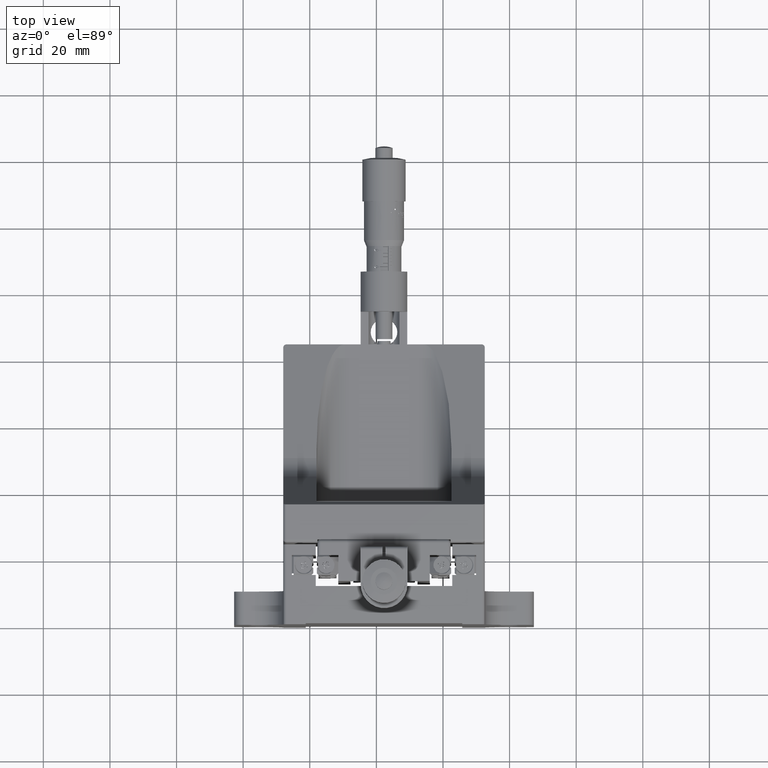
[diagram: clean part render]
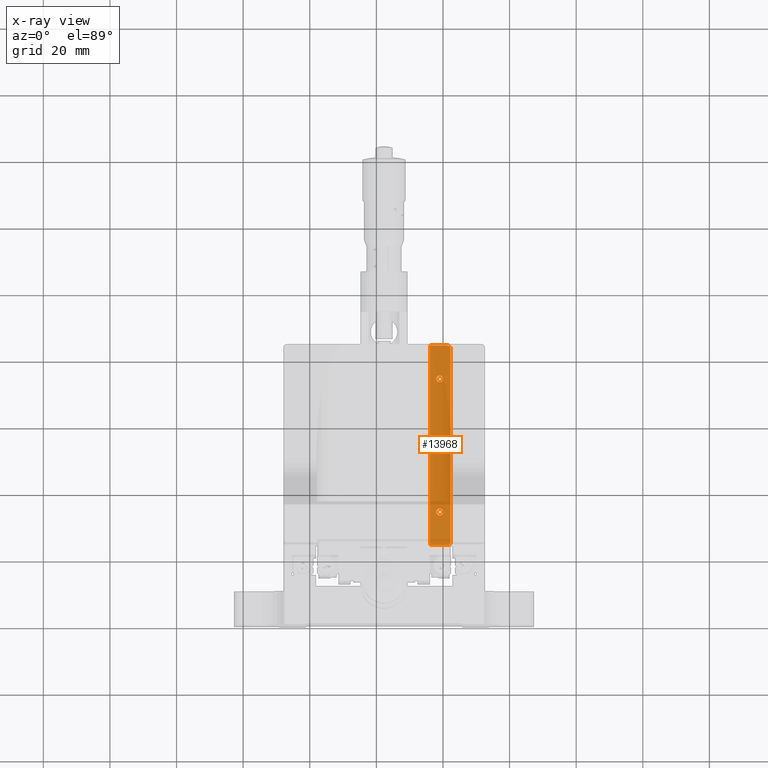
[diagram: x-ray — body ghosted, one internal face saturated and labeled with its STEP entity id]
A machine part, top view, then the same camera in x-ray: the body is ghosted and one INTERNAL B-rep face — a face not visible from any outside direction — is saturated and labeled: STEP entity #13968.
In plain terms, the highlighted planar face has unit normal (0, -0, 1).
Its self-contained STEP definition (entity closure, byte-faithful):
#452 = DIRECTION ( 'NONE',  ( 0.000000000000000000, 1.000000000000000000, 0.000000000000000000 ) ) ;
#713 = CIRCLE ( 'NONE', #36561, 1.024999999999984368 ) ;
#796 = VECTOR ( 'NONE', #21570, 1000.000000000000000 ) ;
#1029 = CARTESIAN_POINT ( 'NONE',  ( 19.04064078781981451, 13.85979336248715654, -39.35053537570062332 ) ) ;
#1458 = CARTESIAN_POINT ( 'NONE',  ( 21.29064078781981095, 4.884793362487149793, -39.35053537570063042 ) ) ;
#1675 = EDGE_CURVE ( 'NONE', #17783, #18372, #35401, .T. ) ;
#1832 = ORIENTED_EDGE ( 'NONE', *, *, #13592, .F. ) ;
#1912 = ORIENTED_EDGE ( 'NONE', *, *, #11530, .F. ) ;
#2531 = CIRCLE ( 'NONE', #9285, 1.000000000000000000 ) ;
#2770 = CIRCLE ( 'NONE', #45338, 1.024999999999987699 ) ;
#3408 = AXIS2_PLACEMENT_3D ( 'NONE', #11864, #44346, #44573 ) ;
#3859 = ORIENTED_EDGE ( 'NONE', *, *, #44028, .F. ) ;
#3997 = VERTEX_POINT ( 'NONE', #45892 ) ;
#4299 = DIRECTION ( 'NONE',  ( -1.387778780781446169E-16, 1.000000000000000000, 7.788471400556193991E-17 ) ) ;
#4492 = CARTESIAN_POINT ( 'NONE',  ( 21.29064078781980385, 63.88479336248714446, -39.35053537570062332 ) ) ;
#4652 = VECTOR ( 'NONE', #40697, 1000.000000000000000 ) ;
#4953 = DIRECTION ( 'NONE',  ( 1.873501354054950676E-16, -7.788471400556191526E-17, 1.000000000000000000 ) ) ;
#6647 = LINE ( 'NONE', #31663, #41505 ) ;
#7014 = VERTEX_POINT ( 'NONE', #40978 ) ;
#7388 = EDGE_CURVE ( 'NONE', #11288, #20204, #19631, .T. ) ;
#7787 = ORIENTED_EDGE ( 'NONE', *, *, #40604, .T. ) ;
#7808 = CARTESIAN_POINT ( 'NONE',  ( 16.04064078781980385, 4.884793362487149793, -39.35053537570062332 ) ) ;
#9285 = AXIS2_PLACEMENT_3D ( 'NONE', #30738, #16017, #45012 ) ;
#9946 = EDGE_LOOP ( 'NONE', ( #30967, #45740 ) ) ;
#9962 = CARTESIAN_POINT ( 'NONE',  ( 19.04064078781980740, 55.90979336248713594, -39.35053537570062332 ) ) ;
#10545 = VERTEX_POINT ( 'NONE', #1458 ) ;
#11233 = CARTESIAN_POINT ( 'NONE',  ( 16.04064078781979319, 64.88479336248714446, -39.35053537570062332 ) ) ;
#11288 = VERTEX_POINT ( 'NONE', #11233 ) ;
#11530 = EDGE_CURVE ( 'NONE', #15656, #11288, #29318, .T. ) ;
#11864 = CARTESIAN_POINT ( 'NONE',  ( 19.04064078781981451, 14.88479336248714446, -39.35053537570062332 ) ) ;
#12174 = CARTESIAN_POINT ( 'NONE',  ( 22.29064078781980740, 64.88479336248714446, -39.35053537570062332 ) ) ;
#13592 = EDGE_CURVE ( 'NONE', #26757, #15052, #37259, .T. ) ;
#13752 = DIRECTION ( 'NONE',  ( 1.873501354054950676E-16, -7.788471400556191526E-17, 1.000000000000000000 ) ) ;
#13871 = DIRECTION ( 'NONE',  ( 1.873501354054950676E-16, -7.788471400556191526E-17, 1.000000000000000000 ) ) ;
#13968 = ADVANCED_FACE ( 'NONE', ( #19049, #23256, #29581, #33106 ), #15795, .T. ) ;
#15052 = VERTEX_POINT ( 'NONE', #37126 ) ;
#15065 = CARTESIAN_POINT ( 'NONE',  ( 16.04064078781980385, 4.884793362487149793, -39.35053537570062332 ) ) ;
#15525 = EDGE_CURVE ( 'NONE', #10545, #3997, #2531, .T. ) ;
#15656 = VERTEX_POINT ( 'NONE', #7808 ) ;
#15795 = PLANE ( 'NONE',  #18614 ) ;
#16017 = DIRECTION ( 'NONE',  ( 1.873501354054950676E-16, -7.788471400556191526E-17, 1.000000000000000000 ) ) ;
#16492 = DIRECTION ( 'NONE',  ( 0.000000000000000000, 1.000000000000000000, 0.000000000000000000 ) ) ;
#16930 = CIRCLE ( 'NONE', #22883, 1.024999999999984368 ) ;
#17126 = CARTESIAN_POINT ( 'NONE',  ( 19.04064078781981095, 33.85979336248716720, -39.35053537570062332 ) ) ;
#17366 = EDGE_LOOP ( 'NONE', ( #3859, #21070 ) ) ;
#17605 = LINE ( 'NONE', #39601, #796 ) ;
#17783 = VERTEX_POINT ( 'NONE', #17126 ) ;
#18372 = VERTEX_POINT ( 'NONE', #32842 ) ;
#18614 = AXIS2_PLACEMENT_3D ( 'NONE', #33342, #36840, #40359 ) ;
#19049 = FACE_BOUND ( 'NONE', #33320, .T. ) ;
#19199 = DIRECTION ( 'NONE',  ( 0.000000000000000000, 1.000000000000000000, 0.000000000000000000 ) ) ;
#19631 = LINE ( 'NONE', #12174, #4652 ) ;
#19740 = EDGE_CURVE ( 'NONE', #3997, #7014, #17605, .T. ) ;
#20204 = VERTEX_POINT ( 'NONE', #29617 ) ;
#20745 = CARTESIAN_POINT ( 'NONE',  ( 19.04064078781981095, 34.88479336248715157, -39.35053537570062332 ) ) ;
#21070 = ORIENTED_EDGE ( 'NONE', *, *, #40028, .F. ) ;
#21570 = DIRECTION ( 'NONE',  ( -1.387778780781446169E-16, 1.000000000000000000, 7.788471400556193991E-17 ) ) ;
#22262 = EDGE_CURVE ( 'NONE', #7014, #20204, #22991, .T. ) ;
#22883 = AXIS2_PLACEMENT_3D ( 'NONE', #20745, #13752, #24489 ) ;
#22991 = CIRCLE ( 'NONE', #40210, 1.000000000000000888 ) ;
#23256 = FACE_BOUND ( 'NONE', #9946, .T. ) ;
#23678 = ORIENTED_EDGE ( 'NONE', *, *, #15525, .T. ) ;
#24489 = DIRECTION ( 'NONE',  ( 0.000000000000000000, 1.000000000000000000, 0.000000000000000000 ) ) ;
#24563 = AXIS2_PLACEMENT_3D ( 'NONE', #33161, #26589, #40183 ) ;
#25052 = CIRCLE ( 'NONE', #3408, 1.024999999999987699 ) ;
#26589 = DIRECTION ( 'NONE',  ( 1.873501354054950676E-16, -7.788471400556191526E-17, 1.000000000000000000 ) ) ;
#26757 = VERTEX_POINT ( 'NONE', #9962 ) ;
#28886 = EDGE_CURVE ( 'NONE', #15052, #26757, #713, .T. ) ;
#29318 = LINE ( 'NONE', #15065, #44598 ) ;
#29581 = FACE_BOUND ( 'NONE', #17366, .T. ) ;
#29617 = CARTESIAN_POINT ( 'NONE',  ( 21.29064078781980385, 64.88479336248714446, -39.35053537570062332 ) ) ;
#30738 = CARTESIAN_POINT ( 'NONE',  ( 21.29064078781981095, 5.884793362487150681, -39.35053537570063042 ) ) ;
#30967 = ORIENTED_EDGE ( 'NONE', *, *, #43663, .F. ) ;
#31663 = CARTESIAN_POINT ( 'NONE',  ( 22.29064078781981451, 4.884793362487149793, -39.35053537570063042 ) ) ;
#32385 = AXIS2_PLACEMENT_3D ( 'NONE', #41745, #37781, #16492 ) ;
#32842 = CARTESIAN_POINT ( 'NONE',  ( 19.04064078781981095, 35.90979336248713594, -39.35053537570062332 ) ) ;
#33106 = FACE_OUTER_BOUND ( 'NONE', #44315, .T. ) ;
#33161 = CARTESIAN_POINT ( 'NONE',  ( 19.04064078781980740, 54.88479336248715157, -39.35053537570062332 ) ) ;
#33320 = EDGE_LOOP ( 'NONE', ( #1832, #38780 ) ) ;
#33342 = CARTESIAN_POINT ( 'NONE',  ( 22.29064078781981451, 4.884793362487149793, -39.35053537570063042 ) ) ;
#33485 = ORIENTED_EDGE ( 'NONE', *, *, #19740, .T. ) ;
#34888 = ORIENTED_EDGE ( 'NONE', *, *, #7388, .F. ) ;
#35314 = ORIENTED_EDGE ( 'NONE', *, *, #22262, .T. ) ;
#35334 = CARTESIAN_POINT ( 'NONE',  ( 19.04064078781980740, 54.88479336248715157, -39.35053537570062332 ) ) ;
#35401 = CIRCLE ( 'NONE', #32385, 1.024999999999984368 ) ;
#36561 = AXIS2_PLACEMENT_3D ( 'NONE', #35334, #46288, #452 ) ;
#36840 = DIRECTION ( 'NONE',  ( 1.873501354054950676E-16, -7.788471400556191526E-17, 1.000000000000000000 ) ) ;
#37126 = CARTESIAN_POINT ( 'NONE',  ( 19.04064078781980740, 53.85979336248716720, -39.35053537570062332 ) ) ;
#37259 = CIRCLE ( 'NONE', #24563, 1.024999999999984368 ) ;
#37781 = DIRECTION ( 'NONE',  ( 1.873501354054950676E-16, -7.788471400556191526E-17, 1.000000000000000000 ) ) ;
#38234 = DIRECTION ( 'NONE',  ( 1.000000000000000000, 1.387778780781446415E-16, -1.873501354054950676E-16 ) ) ;
#38780 = ORIENTED_EDGE ( 'NONE', *, *, #28886, .F. ) ;
#39601 = CARTESIAN_POINT ( 'NONE',  ( 22.29064078781981451, 4.884793362487149793, -39.35053537570063042 ) ) ;
#40028 = EDGE_CURVE ( 'NONE', #44789, #41264, #25052, .T. ) ;
#40183 = DIRECTION ( 'NONE',  ( 0.000000000000000000, 1.000000000000000000, 0.000000000000000000 ) ) ;
#40210 = AXIS2_PLACEMENT_3D ( 'NONE', #4492, #4953, #19199 ) ;
#40359 = DIRECTION ( 'NONE',  ( -1.387778780781446169E-16, 1.000000000000000000, 7.788471400556193991E-17 ) ) ;
#40604 = EDGE_CURVE ( 'NONE', #15656, #10545, #6647, .T. ) ;
#40697 = DIRECTION ( 'NONE',  ( 1.000000000000000000, 1.387778780781446415E-16, -1.873501354054950676E-16 ) ) ;
#40978 = CARTESIAN_POINT ( 'NONE',  ( 22.29064078781980740, 63.88479336248714446, -39.35053537570062332 ) ) ;
#41264 = VERTEX_POINT ( 'NONE', #45821 ) ;
#41505 = VECTOR ( 'NONE', #38234, 1000.000000000000000 ) ;
#41745 = CARTESIAN_POINT ( 'NONE',  ( 19.04064078781981095, 34.88479336248715157, -39.35053537570062332 ) ) ;
#42856 = DIRECTION ( 'NONE',  ( 0.000000000000000000, 1.000000000000000000, 0.000000000000000000 ) ) ;
#43663 = EDGE_CURVE ( 'NONE', #18372, #17783, #16930, .T. ) ;
#44028 = EDGE_CURVE ( 'NONE', #41264, #44789, #2770, .T. ) ;
#44315 = EDGE_LOOP ( 'NONE', ( #7787, #23678, #33485, #35314, #34888, #1912 ) ) ;
#44346 = DIRECTION ( 'NONE',  ( 1.873501354054950676E-16, -7.788471400556191526E-17, 1.000000000000000000 ) ) ;
#44573 = DIRECTION ( 'NONE',  ( 0.000000000000000000, 1.000000000000000000, 0.000000000000000000 ) ) ;
#44598 = VECTOR ( 'NONE', #4299, 1000.000000000000000 ) ;
#44789 = VERTEX_POINT ( 'NONE', #1029 ) ;
#45012 = DIRECTION ( 'NONE',  ( 0.000000000000000000, 1.000000000000000000, 0.000000000000000000 ) ) ;
#45338 = AXIS2_PLACEMENT_3D ( 'NONE', #45897, #13871, #42856 ) ;
#45740 = ORIENTED_EDGE ( 'NONE', *, *, #1675, .F. ) ;
#45821 = CARTESIAN_POINT ( 'NONE',  ( 19.04064078781981451, 15.90979336248713238, -39.35053537570062332 ) ) ;
#45892 = CARTESIAN_POINT ( 'NONE',  ( 22.29064078781981451, 5.884793362487150681, -39.35053537570063042 ) ) ;
#45897 = CARTESIAN_POINT ( 'NONE',  ( 19.04064078781981451, 14.88479336248714446, -39.35053537570062332 ) ) ;
#46288 = DIRECTION ( 'NONE',  ( 1.873501354054950676E-16, -7.788471400556191526E-17, 1.000000000000000000 ) ) ;